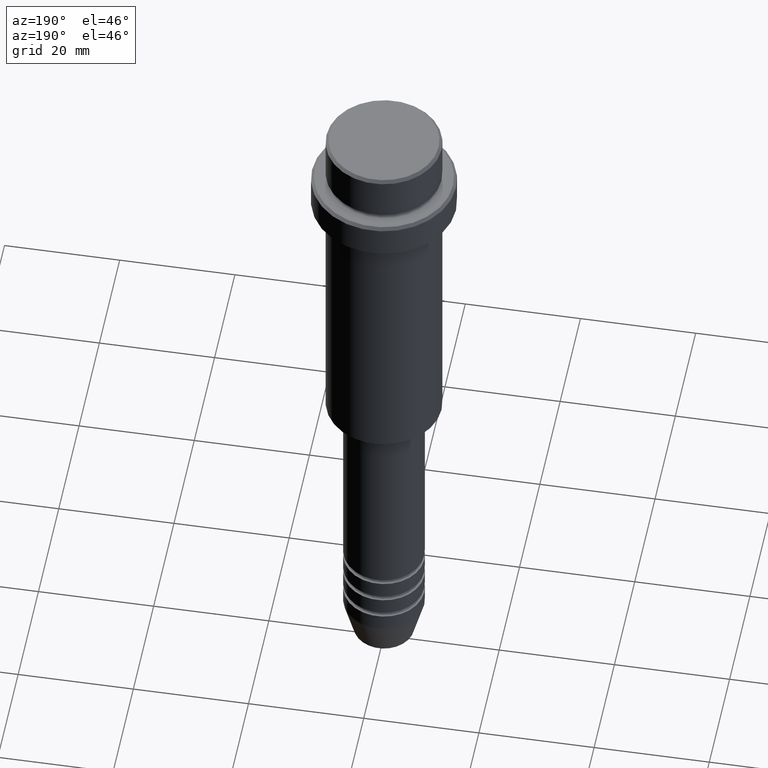
[diagram: clean part render]
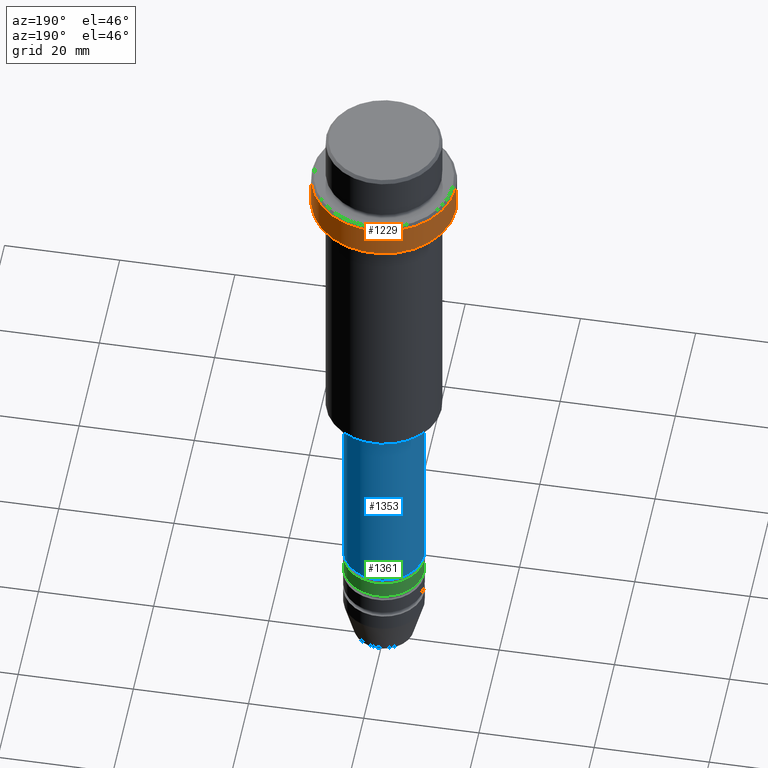
[diagram: same view with three faces highlighted in distinct colors, each labeled with its STEP entity id]
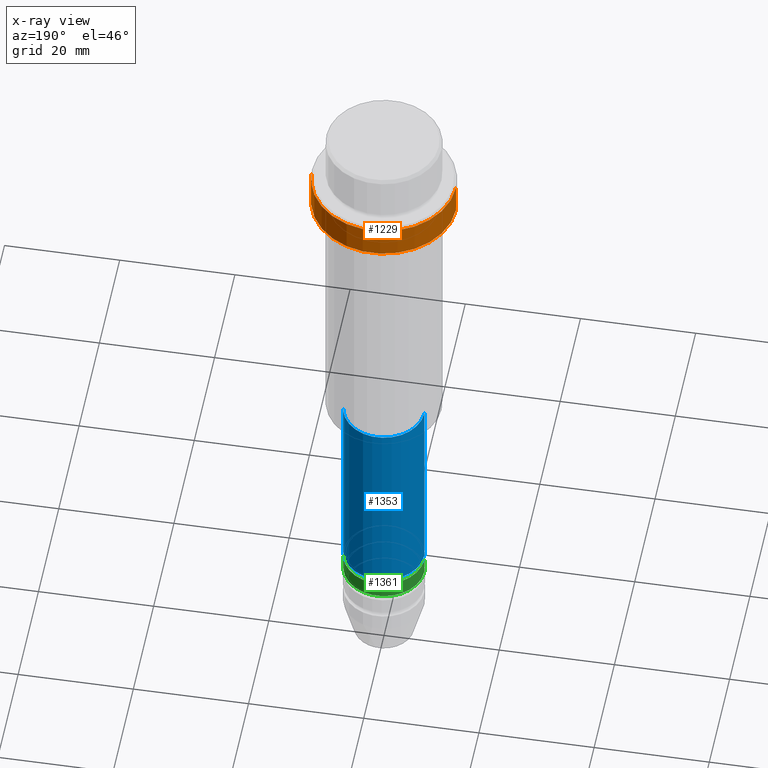
[diagram: x-ray of the same camera — body ghosted, the three highlighted faces saturated]
A machine part, auxiliary view with three faces highlighted in distinct colors.
The next image is the same camera in x-ray (body ghosted, the three faces saturated) — at least one of them is partly hidden behind the body in this view.
Their STEP definitions:

[orange] entity #1229 — the highlighted cylindrical surface (partial cylindrical patch) has radius 12.5 mm, axis along (-0, -0, 1).
#52 = DIRECTION ( 'NONE',  ( -0.000000000000000000, -0.000000000000000000, 1.000000000000000000 ) ) ;
#125 = EDGE_LOOP ( 'NONE', ( #1318, #1395, #690, #308 ) ) ;
#181 = CARTESIAN_POINT ( 'NONE',  ( -12.50000000000000000, 1.530808498934191521E-15, 0.000000000000000000 ) ) ;
#268 = AXIS2_PLACEMENT_3D ( 'NONE', #1192, #871, #1409 ) ;
#272 = LINE ( 'NONE', #181, #1221 ) ;
#280 = EDGE_CURVE ( 'NONE', #643, #1146, #779, .T. ) ;
#308 = ORIENTED_EDGE ( 'NONE', *, *, #280, .F. ) ;
#328 = DIRECTION ( 'NONE',  ( -0.000000000000000000, -0.000000000000000000, 1.000000000000000000 ) ) ;
#339 = VERTEX_POINT ( 'NONE', #1008 ) ;
#434 = VERTEX_POINT ( 'NONE', #1042 ) ;
#503 = AXIS2_PLACEMENT_3D ( 'NONE', #1300, #860, #1284 ) ;
#531 = CIRCLE ( 'NONE', #562, 12.50000000000000000 ) ;
#549 = CYLINDRICAL_SURFACE ( 'NONE', #503, 12.50000000000000000 ) ;
#562 = AXIS2_PLACEMENT_3D ( 'NONE', #636, #52, #615 ) ;
#615 = DIRECTION ( 'NONE',  ( 1.000000000000000000, 0.000000000000000000, 0.000000000000000000 ) ) ;
#636 = CARTESIAN_POINT ( 'NONE',  ( 0.000000000000000000, 0.000000000000000000, -15.00000000000000000 ) ) ;
#643 = VERTEX_POINT ( 'NONE', #1373 ) ;
#681 = EDGE_CURVE ( 'NONE', #643, #434, #531, .T. ) ;
#690 = ORIENTED_EDGE ( 'NONE', *, *, #725, .T. ) ;
#725 = EDGE_CURVE ( 'NONE', #339, #1146, #890, .T. ) ;
#779 = LINE ( 'NONE', #1309, #1250 ) ;
#860 = DIRECTION ( 'NONE',  ( -0.000000000000000000, -0.000000000000000000, 1.000000000000000000 ) ) ;
#871 = DIRECTION ( 'NONE',  ( 0.000000000000000000, 0.000000000000000000, -1.000000000000000000 ) ) ;
#890 = CIRCLE ( 'NONE', #268, 12.50000000000000000 ) ;
#989 = EDGE_CURVE ( 'NONE', #434, #339, #272, .T. ) ;
#1008 = CARTESIAN_POINT ( 'NONE',  ( -12.50000000000000000, 1.530808498934191521E-15, -9.500000000000031974 ) ) ;
#1042 = CARTESIAN_POINT ( 'NONE',  ( -12.50000000000000000, 1.530808498934191521E-15, -15.00000000000000000 ) ) ;
#1077 = DIRECTION ( 'NONE',  ( -0.000000000000000000, -0.000000000000000000, 1.000000000000000000 ) ) ;
#1146 = VERTEX_POINT ( 'NONE', #1196 ) ;
#1183 = FACE_OUTER_BOUND ( 'NONE', #125, .T. ) ;
#1192 = CARTESIAN_POINT ( 'NONE',  ( 0.000000000000000000, 0.000000000000000000, -9.500000000000031974 ) ) ;
#1196 = CARTESIAN_POINT ( 'NONE',  ( 12.50000000000000000, 0.000000000000000000, -9.500000000000031974 ) ) ;
#1221 = VECTOR ( 'NONE', #1077, 1000.000000000000000 ) ;
#1229 = ADVANCED_FACE ( 'NONE', ( #1183 ), #549, .T. ) ;
#1250 = VECTOR ( 'NONE', #328, 1000.000000000000000 ) ;
#1284 = DIRECTION ( 'NONE',  ( 1.000000000000000000, 0.000000000000000000, 0.000000000000000000 ) ) ;
#1300 = CARTESIAN_POINT ( 'NONE',  ( 0.000000000000000000, 0.000000000000000000, 0.000000000000000000 ) ) ;
#1309 = CARTESIAN_POINT ( 'NONE',  ( 12.50000000000000000, 0.000000000000000000, 0.000000000000000000 ) ) ;
#1318 = ORIENTED_EDGE ( 'NONE', *, *, #681, .T. ) ;
#1373 = CARTESIAN_POINT ( 'NONE',  ( 12.50000000000000000, 0.000000000000000000, -15.00000000000000000 ) ) ;
#1395 = ORIENTED_EDGE ( 'NONE', *, *, #989, .T. ) ;
#1409 = DIRECTION ( 'NONE',  ( 1.000000000000000000, 0.000000000000000000, 0.000000000000000000 ) ) ;

[blue] entity #1353 — the highlighted cylindrical surface (partial cylindrical patch) has radius 7 mm, axis along (-0, -0, 1).
#2 = DIRECTION ( 'NONE',  ( -0.000000000000000000, -0.000000000000000000, 1.000000000000000000 ) ) ;
#33 = DIRECTION ( 'NONE',  ( 1.000000000000000000, 0.000000000000000000, 0.000000000000000000 ) ) ;
#53 = AXIS2_PLACEMENT_3D ( 'NONE', #589, #340, #33 ) ;
#69 = LINE ( 'NONE', #497, #600 ) ;
#91 = CARTESIAN_POINT ( 'NONE',  ( -7.000000000000000000, 8.572527594031473190E-16, -100.9999999999999005 ) ) ;
#150 = CARTESIAN_POINT ( 'NONE',  ( 7.000000000000000000, 0.000000000000000000, -100.9999999999999005 ) ) ;
#230 = LINE ( 'NONE', #646, #911 ) ;
#340 = DIRECTION ( 'NONE',  ( -0.000000000000000000, -0.000000000000000000, 1.000000000000000000 ) ) ;
#398 = CIRCLE ( 'NONE', #606, 7.000000000000000000 ) ;
#402 = DIRECTION ( 'NONE',  ( -0.000000000000000000, -0.000000000000000000, 1.000000000000000000 ) ) ;
#435 = CARTESIAN_POINT ( 'NONE',  ( 7.000000000000000000, 0.000000000000000000, -66.00000000000000000 ) ) ;
#450 = EDGE_CURVE ( 'NONE', #1185, #848, #1270, .T. ) ;
#464 = DIRECTION ( 'NONE',  ( 1.000000000000000000, 0.000000000000000000, 0.000000000000000000 ) ) ;
#497 = CARTESIAN_POINT ( 'NONE',  ( 7.000000000000000000, 0.000000000000000000, 0.000000000000000000 ) ) ;
#499 = ORIENTED_EDGE ( 'NONE', *, *, #1216, .T. ) ;
#516 = DIRECTION ( 'NONE',  ( -0.000000000000000000, -0.000000000000000000, 1.000000000000000000 ) ) ;
#523 = ORIENTED_EDGE ( 'NONE', *, *, #1120, .F. ) ;
#541 = VERTEX_POINT ( 'NONE', #150 ) ;
#567 = ORIENTED_EDGE ( 'NONE', *, *, #450, .F. ) ;
#571 = FACE_OUTER_BOUND ( 'NONE', #786, .T. ) ;
#589 = CARTESIAN_POINT ( 'NONE',  ( 0.000000000000000000, 0.000000000000000000, 0.000000000000000000 ) ) ;
#600 = VECTOR ( 'NONE', #2, 1000.000000000000000 ) ;
#606 = AXIS2_PLACEMENT_3D ( 'NONE', #1368, #402, #626 ) ;
#610 = EDGE_CURVE ( 'NONE', #541, #821, #398, .T. ) ;
#626 = DIRECTION ( 'NONE',  ( 1.000000000000000000, 0.000000000000000000, 0.000000000000000000 ) ) ;
#646 = CARTESIAN_POINT ( 'NONE',  ( -7.000000000000000000, 8.572527594031473190E-16, 0.000000000000000000 ) ) ;
#786 = EDGE_LOOP ( 'NONE', ( #1408, #499, #567, #523 ) ) ;
#821 = VERTEX_POINT ( 'NONE', #91 ) ;
#848 = VERTEX_POINT ( 'NONE', #996 ) ;
#911 = VECTOR ( 'NONE', #516, 1000.000000000000000 ) ;
#926 = CARTESIAN_POINT ( 'NONE',  ( 0.000000000000000000, 0.000000000000000000, -66.00000000000000000 ) ) ;
#996 = CARTESIAN_POINT ( 'NONE',  ( -7.000000000000000000, 8.572527594031473190E-16, -66.00000000000000000 ) ) ;
#1022 = CYLINDRICAL_SURFACE ( 'NONE', #53, 7.000000000000000000 ) ;
#1051 = DIRECTION ( 'NONE',  ( -0.000000000000000000, -0.000000000000000000, 1.000000000000000000 ) ) ;
#1058 = AXIS2_PLACEMENT_3D ( 'NONE', #926, #1051, #464 ) ;
#1120 = EDGE_CURVE ( 'NONE', #541, #1185, #69, .T. ) ;
#1185 = VERTEX_POINT ( 'NONE', #435 ) ;
#1216 = EDGE_CURVE ( 'NONE', #821, #848, #230, .T. ) ;
#1270 = CIRCLE ( 'NONE', #1058, 7.000000000000000000 ) ;
#1353 = ADVANCED_FACE ( 'NONE', ( #571 ), #1022, .T. ) ;
#1368 = CARTESIAN_POINT ( 'NONE',  ( 0.000000000000000000, 0.000000000000000000, -100.9999999999999005 ) ) ;
#1408 = ORIENTED_EDGE ( 'NONE', *, *, #610, .T. ) ;

[green] entity #1361 — the highlighted cylindrical surface (partial cylindrical patch) has radius 7 mm, axis along (-0, -0, 1).
#26 = FACE_OUTER_BOUND ( 'NONE', #723, .T. ) ;
#38 = VERTEX_POINT ( 'NONE', #1343 ) ;
#55 = CIRCLE ( 'NONE', #195, 7.000000000000000000 ) ;
#62 = DIRECTION ( 'NONE',  ( 1.000000000000000000, 0.000000000000000000, 0.000000000000000000 ) ) ;
#78 = DIRECTION ( 'NONE',  ( -0.000000000000000000, -0.000000000000000000, 1.000000000000000000 ) ) ;
#93 = DIRECTION ( 'NONE',  ( -0.000000000000000000, -0.000000000000000000, 1.000000000000000000 ) ) ;
#111 = EDGE_CURVE ( 'NONE', #38, #1235, #715, .T. ) ;
#189 = DIRECTION ( 'NONE',  ( -0.000000000000000000, -0.000000000000000000, 1.000000000000000000 ) ) ;
#195 = AXIS2_PLACEMENT_3D ( 'NONE', #1074, #78, #405 ) ;
#263 = DIRECTION ( 'NONE',  ( 1.000000000000000000, 0.000000000000000000, 0.000000000000000000 ) ) ;
#264 = EDGE_CURVE ( 'NONE', #38, #1207, #55, .T. ) ;
#289 = CARTESIAN_POINT ( 'NONE',  ( 7.000000000000000000, 0.000000000000000000, 0.000000000000000000 ) ) ;
#355 = DIRECTION ( 'NONE',  ( -0.000000000000000000, -0.000000000000000000, 1.000000000000000000 ) ) ;
#384 = LINE ( 'NONE', #1379, #982 ) ;
#405 = DIRECTION ( 'NONE',  ( 1.000000000000000000, 0.000000000000000000, 0.000000000000000000 ) ) ;
#415 = ORIENTED_EDGE ( 'NONE', *, *, #264, .T. ) ;
#459 = CARTESIAN_POINT ( 'NONE',  ( 0.000000000000000000, 0.000000000000000000, 0.000000000000000000 ) ) ;
#613 = EDGE_CURVE ( 'NONE', #1235, #941, #1206, .T. ) ;
#619 = EDGE_CURVE ( 'NONE', #1207, #941, #384, .T. ) ;
#635 = ORIENTED_EDGE ( 'NONE', *, *, #613, .F. ) ;
#673 = VECTOR ( 'NONE', #93, 1000.000000000000000 ) ;
#715 = LINE ( 'NONE', #289, #673 ) ;
#723 = EDGE_LOOP ( 'NONE', ( #415, #784, #635, #1109 ) ) ;
#735 = CARTESIAN_POINT ( 'NONE',  ( -7.000000000000000000, 8.572527594031473190E-16, -104.9999999999999005 ) ) ;
#784 = ORIENTED_EDGE ( 'NONE', *, *, #619, .T. ) ;
#799 = CARTESIAN_POINT ( 'NONE',  ( -7.000000000000000000, 8.572527594031473190E-16, -101.9999999999999005 ) ) ;
#847 = DIRECTION ( 'NONE',  ( -0.000000000000000000, -0.000000000000000000, 1.000000000000000000 ) ) ;
#941 = VERTEX_POINT ( 'NONE', #799 ) ;
#964 = CARTESIAN_POINT ( 'NONE',  ( 0.000000000000000000, 0.000000000000000000, -101.9999999999999005 ) ) ;
#982 = VECTOR ( 'NONE', #189, 1000.000000000000000 ) ;
#1010 = AXIS2_PLACEMENT_3D ( 'NONE', #964, #847, #62 ) ;
#1074 = CARTESIAN_POINT ( 'NONE',  ( 0.000000000000000000, 0.000000000000000000, -104.9999999999999005 ) ) ;
#1075 = AXIS2_PLACEMENT_3D ( 'NONE', #459, #355, #263 ) ;
#1109 = ORIENTED_EDGE ( 'NONE', *, *, #111, .F. ) ;
#1206 = CIRCLE ( 'NONE', #1010, 7.000000000000000000 ) ;
#1207 = VERTEX_POINT ( 'NONE', #735 ) ;
#1235 = VERTEX_POINT ( 'NONE', #1293 ) ;
#1240 = CYLINDRICAL_SURFACE ( 'NONE', #1075, 7.000000000000000000 ) ;
#1293 = CARTESIAN_POINT ( 'NONE',  ( 7.000000000000000000, 0.000000000000000000, -101.9999999999999005 ) ) ;
#1343 = CARTESIAN_POINT ( 'NONE',  ( 7.000000000000000000, 0.000000000000000000, -104.9999999999999005 ) ) ;
#1361 = ADVANCED_FACE ( 'NONE', ( #26 ), #1240, .T. ) ;
#1379 = CARTESIAN_POINT ( 'NONE',  ( -7.000000000000000000, 8.572527594031473190E-16, 0.000000000000000000 ) ) ;